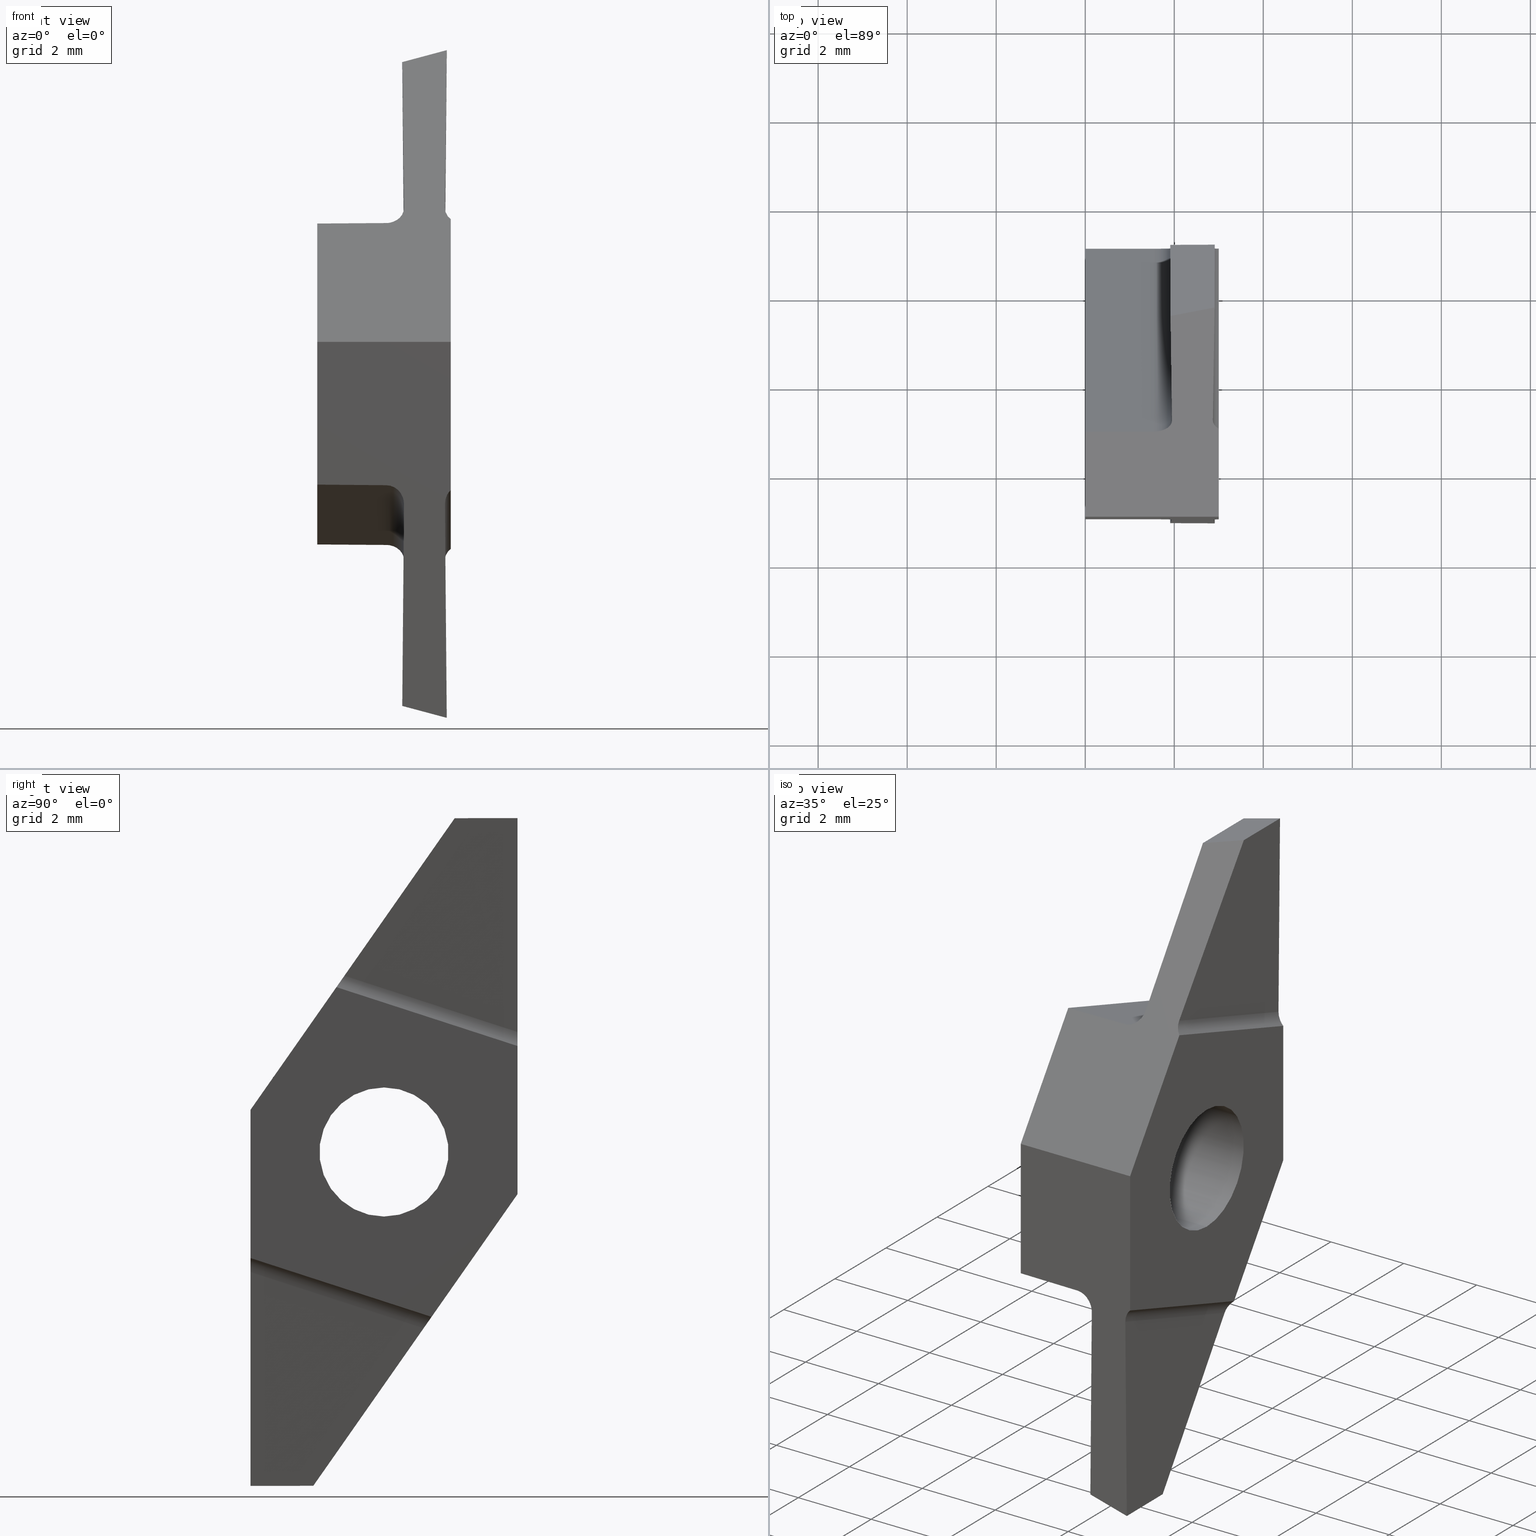
[diagram: canonical four-view strip — front | top / right | iso, engineering-drawing reading convention]
A machine part, canonical four-view strip (front | top / right | iso — engineering-drawing reading convention). The complete STEP part file that produces these views, byte-faithful:
ISO-10303-21;
HEADER;
FILE_DESCRIPTION (( 'STEP AP214' ),
    '1' );
FILE_NAME ('CUT-1602-01-CUT-1602-CUT-1602-01-93 stp.step',
    '2023-05-16T09:29:34',
    ( '' ),
    ( '' ),
    'SwSTEP 2.0',
    'SolidWorks 2022',
    '' );
FILE_SCHEMA (( 'AUTOMOTIVE_DESIGN' ));
ENDSEC;

DATA;
#1 = LINE ( 'NONE', #205, #401 ) ;
#2 = VERTEX_POINT ( 'NONE', #20 ) ;
#3 = DIRECTION ( 'NONE',  ( 0.000000000000000000, 0.5735764363510446051, 0.8191520442889929088 ) ) ;
#4 = ORIENTED_EDGE ( 'NONE', *, *, #560, .F. ) ;
#5 = VECTOR ( 'NONE', #468, 1000.000000000000114 ) ;
#6 = FACE_OUTER_BOUND ( 'NONE', #491, .T. ) ;
#7 = CARTESIAN_POINT ( 'NONE',  ( 3.268072926187949534, -2.335655814082118642, 4.427363277385077289 ) ) ;
#8 = PRODUCT_CONTEXT ( 'NONE', #183, 'mechanical' ) ;
#9 = DIRECTION ( 'NONE',  ( -0.008726535498373801103, 0.000000000000000000, 0.9999619230641713097 ) ) ;
#10 = DIRECTION ( 'NONE',  ( 0.000000000000000000, -0.3090169943749408454, -0.9510565162951556406 ) ) ;
#11 = CARTESIAN_POINT ( 'NONE',  ( 2.971793399215882037, 2.999999999999831246, 2.286259941952640595 ) ) ;
#12 = ORIENTED_EDGE ( 'NONE', *, *, #109, .T. ) ;
#13 = VECTOR ( 'NONE', #426, 999.9999999999998863 ) ;
#14 = ADVANCED_FACE ( 'NONE', ( #117 ), #608, .F. ) ;
#15 =( GEOMETRIC_REPRESENTATION_CONTEXT ( 3 ) GLOBAL_UNCERTAINTY_ASSIGNED_CONTEXT ( ( #322 ) ) GLOBAL_UNIT_ASSIGNED_CONTEXT ( ( #587, #389, #639 ) ) REPRESENTATION_CONTEXT ( 'NONE', 'WORKASPACE' ) );
#16 = LINE ( 'NONE', #465, #82 ) ;
#17 = ORIENTED_EDGE ( 'NONE', *, *, #351, .F. ) ;
#18 = CARTESIAN_POINT ( 'NONE',  ( 3.000000000000000444, 2.999999999999831690, 2.381546972483334024 ) ) ;
#19 = ADVANCED_FACE ( 'NONE', ( #568 ), #305, .F. ) ;
#20 = CARTESIAN_POINT ( 'NONE',  ( 1.949565382969295380, 0.8883138479216154959, -3.961696735592872720 ) ) ;
#21 = CARTESIAN_POINT ( 'NONE',  ( 2.867023292970518167, 2.999999999999831246, 2.575357154484895439 ) ) ;
#22 = CARTESIAN_POINT ( 'NONE',  ( 3.000000000000000000, -2.999999999999831246, 0.9458963666369498702 ) ) ;
#23 = EDGE_CURVE ( 'NONE', #521, #2, #174, .T. ) ;
#24 = UNCERTAINTY_MEASURE_WITH_UNIT (LENGTH_MEASURE( 1.000000000000000082E-05 ), #48, 'distance_accuracy_value', 'NONE');
#25 = ORIENTED_EDGE ( 'NONE', *, *, #395, .T. ) ;
#26 = LINE ( 'NONE', #529, #41 ) ;
#27 = VECTOR ( 'NONE', #264, 1000.000000000000114 ) ;
#28 = PRODUCT_DEFINITION_FORMATION_WITH_SPECIFIED_SOURCE ( 'ANY', '', #535, .NOT_KNOWN. ) ;
#29 = DIRECTION ( 'NONE',  ( -0.9504440842960546476, -0.1783223612929410173, -0.2546707248380619681 ) ) ;
#30 = VERTEX_POINT ( 'NONE', #159 ) ;
#31 = CARTESIAN_POINT ( 'NONE',  ( 2.868089764816377674, 2.999999999999831246, 2.697562723702898957 ) ) ;
#32 = LINE ( 'NONE', #534, #63 ) ;
#33 = ORIENTED_EDGE ( 'NONE', *, *, #628, .F. ) ;
#34 = LINE ( 'NONE', #328, #436 ) ;
#35 = EDGE_CURVE ( 'NONE', #235, #544, #262, .T. ) ;
#36 = LINE ( 'NONE', #438, #13 ) ;
#37 = ORIENTED_EDGE ( 'NONE', *, *, #247, .T. ) ;
#38 = SURFACE_SIDE_STYLE ('',( #149 ) ) ;
#39 = VECTOR ( 'NONE', #192, 1000.000000000000114 ) ;
#40 = DIRECTION ( 'NONE',  ( -1.000000000000000000, 0.000000000000000000, 0.000000000000000000 ) ) ;
#41 = VECTOR ( 'NONE', #230, 1000.000000000000227 ) ;
#42 = ORIENTED_EDGE ( 'NONE', *, *, #552, .T. ) ;
#43 = PRODUCT_DEFINITION ( 'UNKNOWN', '', #28, #559 ) ;
#44 = DIRECTION ( 'NONE',  ( -1.000000000000000000, 0.000000000000000000, 0.000000000000000000 ) ) ;
#45 = CARTESIAN_POINT ( 'NONE',  ( 1.552902005048489853, -1.130420593828511899, 3.615932469007118399 ) ) ;
#46 = ORIENTED_EDGE ( 'NONE', *, *, #413, .F. ) ;
#47 = PLANE ( 'NONE',  #317 ) ;
#48 =( LENGTH_UNIT ( ) NAMED_UNIT ( * ) SI_UNIT ( .MILLI., .METRE. ) );
#49 = ORIENTED_EDGE ( 'NONE', *, *, #501, .T. ) ;
#50 = CARTESIAN_POINT ( 'NONE',  ( 1.834532862608347692, 29.67704931971491433, 7.211829449049698582 ) ) ;
#51 = VERTEX_POINT ( 'NONE', #466 ) ;
#52 = AXIS2_PLACEMENT_3D ( 'NONE', #616, #357, #605 ) ;
#53 = MECHANICAL_DESIGN_GEOMETRIC_PRESENTATION_REPRESENTATION (  '', ( #145 ), #15 ) ;
#54 = ADVANCED_FACE ( 'NONE', ( #124 ), #62, .F. ) ;
#55 = DIRECTION ( 'NONE',  ( -0.9659258262890693114, -0.000000000000000000, 0.2588190451025171868 ) ) ;
#56 = CARTESIAN_POINT ( 'NONE',  ( 1.787371315628932145, -1.129253392658269073, 3.617599405031864723 ) ) ;
#57 = ORIENTED_EDGE ( 'NONE', *, *, #214, .F. ) ;
#58 = EDGE_CURVE ( 'NONE', #415, #168, #121, .T. ) ;
#59 = CARTESIAN_POINT ( 'NONE',  ( 3.000000000000000000, 3.000000000000168754, -0.9458963666369464285 ) ) ;
#60 = ORIENTED_EDGE ( 'NONE', *, *, #243, .T. ) ;
#61 = CARTESIAN_POINT ( 'NONE',  ( -1.232658810657304681E-17, -3.961943090966158820, 4.522397928163644387 ) ) ;
#62 = CYLINDRICAL_SURFACE ( 'NONE', #96, 0.4000000000000001332 ) ;
#63 = VECTOR ( 'NONE', #228, 1000.000000000000227 ) ;
#64 = AXIS2_PLACEMENT_3D ( 'NONE', #81, #584, #127 ) ;
#65 = DIRECTION ( 'NONE',  ( 0.9999619230641713097, 0.000000000000000000, 0.008726535498370685540 ) ) ;
#66 = ORIENTED_EDGE ( 'NONE', *, *, #313, .T. ) ;
#67 = EDGE_CURVE ( 'NONE', #157, #406, #514, .T. ) ;
#68 = CARTESIAN_POINT ( 'NONE',  ( 3.000000000000000000, 1.823566348508409485, 7.834663032647361192 ) ) ;
#69 = CARTESIAN_POINT ( 'NONE',  ( 1.981445435093202478, -2.999999999999831246, 0.9547851576625652203 ) ) ;
#70 = DIRECTION ( 'NONE',  ( 0.000000000000000000, 0.9510565162951555296, -0.3090169943749411230 ) ) ;
#71 = LINE ( 'NONE', #483, #249 ) ;
#72 = VECTOR ( 'NONE', #78, 1000.000000000000227 ) ;
#73 = CARTESIAN_POINT ( 'NONE',  ( 1.552902005048489409, 2.999999999999831246, 2.273877464346301114 ) ) ;
#74 = ORIENTED_EDGE ( 'NONE', *, *, #281, .F. ) ;
#75 = CYLINDRICAL_SURFACE ( 'NONE', #358, 0.4000000000000002442 ) ;
#76 = CARTESIAN_POINT ( 'NONE',  ( 2.868089764816377674, 2.999999999999831246, 2.697562723702898957 ) ) ;
#77 = DIRECTION ( 'NONE',  ( 0.000000000000000000, 0.000000000000000000, -1.000000000000000000 ) ) ;
#78 = DIRECTION ( 'NONE',  ( 0.9659258262890692004, 0.000000000000000000, 0.2588190451025171868 ) ) ;
#79 =( BOUNDED_CURVE ( )  B_SPLINE_CURVE ( 3, ( #394, #387, #202, #499 ),
 .UNSPECIFIED., .F., .F. ) 
 B_SPLINE_CURVE_WITH_KNOTS ( ( 4, 4 ),
 ( 4.703213266088003053, 6.274885753270528888 ),
 .UNSPECIFIED. ) 
 CURVE ( )  GEOMETRIC_REPRESENTATION_ITEM ( )  RATIONAL_B_SPLINE_CURVE ( ( 1.000000000000000000, 0.8045312959125139329, 0.8045312959125139329, 1.000000000000000000 ) ) 
 REPRESENTATION_ITEM ( '' )  );
#80 = ORIENTED_EDGE ( 'NONE', *, *, #206, .F. ) ;
#81 = CARTESIAN_POINT ( 'NONE',  ( 0.000000000000000000, 0.000000000000000000, 0.000000000000000000 ) ) ;
#82 = VECTOR ( 'NONE', #613, 1000.000000000000227 ) ;
#83 = VECTOR ( 'NONE', #449, 1000.000000000000114 ) ;
#84 = SURFACE_STYLE_FILL_AREA ( #530 ) ;
#85 = VERTEX_POINT ( 'NONE', #517 ) ;
#86 = EDGE_CURVE ( 'NONE', #225, #420, #71, .T. ) ;
#87 = ADVANCED_FACE ( 'NONE', ( #378 ), #238, .F. ) ;
#88 = DIRECTION ( 'NONE',  ( 0.000000000000000000, 0.9510565162951555296, -0.3090169943749411785 ) ) ;
#89 = CARTESIAN_POINT ( 'NONE',  ( 3.044585391019133613, 1.122994911595623257, -3.626537442286718704 ) ) ;
#90 = VERTEX_POINT ( 'NONE', #370 ) ;
#91 = EDGE_CURVE ( 'NONE', #209, #186, #585, .T. ) ;
#92 = CARTESIAN_POINT ( 'NONE',  ( 1.552902005048489631, -2.998973231275686491, -2.274211081728251926 ) ) ;
#93 = CARTESIAN_POINT ( 'NONE',  ( 1.949565382969295158, -2.999999999999831246, -2.698306981268059790 ) ) ;
#94 = ORIENTED_EDGE ( 'NONE', *, *, #206, .T. ) ;
#95 = LINE ( 'NONE', #240, #237 ) ;
#96 = AXIS2_PLACEMENT_3D ( 'NONE', #7, #211, #10 ) ;
#97 = LINE ( 'NONE', #245, #366 ) ;
#98 = VECTOR ( 'NONE', #130, 1000.000000000000114 ) ;
#99 = ORIENTED_EDGE ( 'NONE', *, *, #407, .T. ) ;
#100 =( NAMED_UNIT ( * ) SI_UNIT ( $, .STERADIAN. ) SOLID_ANGLE_UNIT ( ) );
#101 = DIRECTION ( 'NONE',  ( 0.000000000000000000, 0.5735764363510444941, 0.8191520442889929088 ) ) ;
#102 = ORIENTED_EDGE ( 'NONE', *, *, #439, .F. ) ;
#103 = CARTESIAN_POINT ( 'NONE',  ( 2.867023292970519055, -0.9584479486038182117, 3.861534859498934935 ) ) ;
#104 = EDGE_LOOP ( 'NONE', ( #254 ) ) ;
#105 = EDGE_CURVE ( 'NONE', #51, #528, #382, .T. ) ;
#106 = DIRECTION ( 'NONE',  ( -0.008726535498366820576, -0.000000000000000000, 0.9999619230641713097 ) ) ;
#107 = ORIENTED_EDGE ( 'NONE', *, *, #105, .F. ) ;
#108 = COLOUR_RGB ( '',0.8000000000000000444, 0.8000000000000000444, 0.8000000000000000444 ) ;
#109 = EDGE_CURVE ( 'NONE', #371, #273, #487, .T. ) ;
#110 = EDGE_CURVE ( 'NONE', #273, #555, #32, .T. ) ;
#111 = DIRECTION ( 'NONE',  ( 0.000000000000000000, 0.000000000000000000, 1.000000000000000000 ) ) ;
#112 = PLANE ( 'NONE',  #637 ) ;
#113 = ORIENTED_EDGE ( 'NONE', *, *, #167, .T. ) ;
#114 = LINE ( 'NONE', #300, #306 ) ;
#115 = DIRECTION ( 'NONE',  ( 2.704990084214964151E-20, -0.9510565162951556406, 0.3090169943749411785 ) ) ;
#116 = PLANE ( 'NONE',  #553 ) ;
#117 = FACE_OUTER_BOUND ( 'NONE', #276, .T. ) ;
#118 =( GEOMETRIC_REPRESENTATION_CONTEXT ( 3 ) GLOBAL_UNCERTAINTY_ASSIGNED_CONTEXT ( ( #24 ) ) GLOBAL_UNIT_ASSIGNED_CONTEXT ( ( #48, #293, #241 ) ) REPRESENTATION_CONTEXT ( 'NONE', 'WORKASPACE' ) );
#119 = DIRECTION ( 'NONE',  ( 0.9999579034289297619, -0.002835411865495959111, -0.008726500419548482643 ) ) ;
#120 = EDGE_CURVE ( 'NONE', #267, #521, #618, .T. ) ;
#121 = LINE ( 'NONE', #566, #27 ) ;
#122 = ADVANCED_FACE ( 'NONE', ( #576 ), #185, .F. ) ;
#123 = DIRECTION ( 'NONE',  ( 0.000000000000000000, 0.5735764363510444941, 0.8191520442889929088 ) ) ;
#124 = FACE_OUTER_BOUND ( 'NONE', #143, .T. ) ;
#125 = LINE ( 'NONE', #269, #5 ) ;
#126 = ORIENTED_EDGE ( 'NONE', *, *, #467, .F. ) ;
#127 = DIRECTION ( 'NONE',  ( 0.000000000000000000, 0.000000000000000000, 1.000000000000000000 ) ) ;
#128 = LINE ( 'NONE', #372, #543 ) ;
#129 = DIRECTION ( 'NONE',  ( 5.093655730767969543E-19, -0.9510565162951555296, 0.3090169943749411230 ) ) ;
#130 = DIRECTION ( 'NONE',  ( 5.093655730767969543E-19, 0.9510565162951555296, -0.3090169943749411230 ) ) ;
#131 = EDGE_CURVE ( 'NONE', #480, #555, #140, .T. ) ;
#132 = EDGE_CURVE ( 'NONE', #392, #267, #36, .T. ) ;
#133 = EDGE_LOOP ( 'NONE', ( #583, #270, #385, #229, #99, #189 ) ) ;
#134 = CARTESIAN_POINT ( 'NONE',  ( 0.000000000000000000, -2.999999999999831246, 0.9458963666369498702 ) ) ;
#135 = VECTOR ( 'NONE', #40, 1000.000000000000000 ) ;
#136 = LINE ( 'NONE', #89, #593 ) ;
#137 = EDGE_LOOP ( 'NONE', ( #42 ) ) ;
#138 = EDGE_CURVE ( 'NONE', #595, #148, #136, .T. ) ;
#139 = CARTESIAN_POINT ( 'NONE',  ( 1.914519305005153882, -1.402460638096504342, -7.233261751695358122 ) ) ;
#140 = LINE ( 'NONE', #275, #423 ) ;
#141 = ORIENTED_EDGE ( 'NONE', *, *, #439, .T. ) ;
#142 = EDGE_CURVE ( 'NONE', #85, #251, #172, .T. ) ;
#143 = EDGE_LOOP ( 'NONE', ( #633, #60, #603, #360 ) ) ;
#144 = FACE_OUTER_BOUND ( 'NONE', #163, .T. ) ;
#145 = STYLED_ITEM ( 'NONE', ( #343 ), #160 ) ;
#146 = EDGE_LOOP ( 'NONE', ( #376, #611, #170, #497 ) ) ;
#147 = CARTESIAN_POINT ( 'NONE',  ( 1.552902005048489409, -2.999999999999831246, -2.273877464346301114 ) ) ;
#148 = VERTEX_POINT ( 'NONE', #283 ) ;
#149 = SURFACE_STYLE_FILL_AREA ( #244 ) ;
#150 = CARTESIAN_POINT ( 'NONE',  ( 1.951716850284155313, -1.028943747718853663, 3.760856424509101181 ) ) ;
#151 = ORIENTED_EDGE ( 'NONE', *, *, #142, .T. ) ;
#152 = DIRECTION ( 'NONE',  ( 3.579961649120140715E-19, -0.9510565162951555296, 0.3090169943749411785 ) ) ;
#153 = ORIENTED_EDGE ( 'NONE', *, *, #131, .F. ) ;
#154 = EDGE_CURVE ( 'NONE', #30, #242, #579, .T. ) ;
#155 = CIRCLE ( 'NONE', #522, 1.449999999999999067 ) ;
#156 = CARTESIAN_POINT ( 'NONE',  ( 3.268072926187949534, 2.335655814082118642, -4.427363277385077289 ) ) ;
#157 = VERTEX_POINT ( 'NONE', #93 ) ;
#158 = DIRECTION ( 'NONE',  ( 0.000000000000000000, 0.000000000000000000, -1.000000000000000000 ) ) ;
#159 = CARTESIAN_POINT ( 'NONE',  ( 1.909999999999999698, 2.999999999999836131, 7.232050807568879414 ) ) ;
#160 = ADVANCED_BREP_SHAPE_REPRESENTATION ( 'CUT-1602-01-CUT-1602-CUT-1602-01-93 stp', ( #201, #259 ), #402 ) ;
#161 = EDGE_CURVE ( 'NONE', #521, #406, #630, .T. ) ;
#162 = FACE_OUTER_BOUND ( 'NONE', #586, .T. ) ;
#163 = EDGE_LOOP ( 'NONE', ( #625, #549, #25, #299, #431, #196, #400, #213, #427 ) ) ;
#164 = AXIS2_PLACEMENT_3D ( 'NONE', #68, #303, #3 ) ;
#165 = VECTOR ( 'NONE', #437, 1000.000000000000227 ) ;
#166 = PLANE ( 'NONE',  #164 ) ;
#167 = EDGE_CURVE ( 'NONE', #335, #335, #380, .T. ) ;
#168 = VERTEX_POINT ( 'NONE', #76 ) ;
#169 = FACE_OUTER_BOUND ( 'NONE', #232, .T. ) ;
#170 = ORIENTED_EDGE ( 'NONE', *, *, #515, .F. ) ;
#171 = EDGE_CURVE ( 'NONE', #225, #330, #525, .T. ) ;
#172 =( BOUNDED_CURVE ( )  B_SPLINE_CURVE ( 3, ( #538, #375, #478, #319 ),
 .UNSPECIFIED., .F., .F. ) 
 B_SPLINE_CURVE_WITH_KNOTS ( ( 4, 4 ),
 ( 1.561620612498217486, 2.407138250247120137 ),
 .UNSPECIFIED. ) 
 CURVE ( )  GEOMETRIC_REPRESENTATION_ITEM ( )  RATIONAL_B_SPLINE_CURVE ( ( 1.000000000000000000, 0.9413070198067640115, 0.9413070198067640115, 1.000000000000000000 ) ) 
 REPRESENTATION_ITEM ( '' )  );
#173 = DIRECTION ( 'NONE',  ( 0.000000000000000000, -0.8191520442889929088, 0.5735764363510444941 ) ) ;
#174 = LINE ( 'NONE', #558, #414 ) ;
#175 = VECTOR ( 'NONE', #260, 1000.000000000000000 ) ;
#176 = VECTOR ( 'NONE', #471, 1000.000000000000114 ) ;
#177 = CARTESIAN_POINT ( 'NONE',  ( 0.000000000000000000, 3.000000000000168310, 2.260325493856135015 ) ) ;
#178 = CARTESIAN_POINT ( 'NONE',  ( 3.112022366277341856, -1.627136215618504300, -7.554131729897035186 ) ) ;
#179 = ORIENTED_EDGE ( 'NONE', *, *, #214, .T. ) ;
#180 = PLANE ( 'NONE',  #199 ) ;
#181 = DIRECTION ( 'NONE',  ( -0.9999623398293699950, 0.004977867723315087915, 0.007109131866878383617 ) ) ;
#182 = ORIENTED_EDGE ( 'NONE', *, *, #501, .F. ) ;
#183 = APPLICATION_CONTEXT ( 'automotive_design' ) ;
#184 = CARTESIAN_POINT ( 'NONE',  ( 1.549582221597723297, 3.834357726173466485, -4.915065304970623217 ) ) ;
#185 = PLANE ( 'NONE',  #435 ) ;
#186 = VERTEX_POINT ( 'NONE', #433 ) ;
#187 = VECTOR ( 'NONE', #527, 1000.000000000000000 ) ;
#188 = CARTESIAN_POINT ( 'NONE',  ( 3.000000000000000444, -1.069002824306939825, 3.703646134127897671 ) ) ;
#189 = ORIENTED_EDGE ( 'NONE', *, *, #86, .T. ) ;
#190 =( BOUNDED_CURVE ( )  B_SPLINE_CURVE ( 3, ( #147, #545, #346, #250 ),
 .UNSPECIFIED., .F., .F. ) 
 B_SPLINE_CURVE_WITH_KNOTS ( ( 4, 4 ),
 ( 3.149892207498848684, 4.721564694681373631 ),
 .UNSPECIFIED. ) 
 CURVE ( )  GEOMETRIC_REPRESENTATION_ITEM ( )  RATIONAL_B_SPLINE_CURVE ( ( 1.000000000000000000, 0.8045312959125141550, 0.8045312959125141550, 1.000000000000000000 ) ) 
 REPRESENTATION_ITEM ( '' )  );
#191 = SURFACE_STYLE_USAGE ( .BOTH. , #38 ) ;
#192 = DIRECTION ( 'NONE',  ( -0.002828904082893561947, 0.9999957113577047085, -0.0007580025644764245034 ) ) ;
#193 = VERTEX_POINT ( 'NONE', #188 ) ;
#194 = CARTESIAN_POINT ( 'NONE',  ( 2.868089764816377674, -0.8887383937414377044, 3.961090421326522559 ) ) ;
#195 = DIRECTION ( 'NONE',  ( 0.008726535498366820576, 0.000000000000000000, -0.9999619230641713097 ) ) ;
#196 = ORIENTED_EDGE ( 'NONE', *, *, #628, .T. ) ;
#197 = VECTOR ( 'NONE', #411, 999.9999999999998863 ) ;
#198 = CARTESIAN_POINT ( 'NONE',  ( 1.914519305005153882, 1.402460638096504342, 7.233261751695358122 ) ) ;
#199 = AXIS2_PLACEMENT_3D ( 'NONE', #482, #432, #323 ) ;
#200 = ORIENTED_EDGE ( 'NONE', *, *, #161, .T. ) ;
#201 = MANIFOLD_SOLID_BREP ( 'Kombinieren1', #327 ) ;
#202 = CARTESIAN_POINT ( 'NONE',  ( 1.787371315628932145, 1.129253392658269073, -3.617599405031864723 ) ) ;
#203 = EDGE_LOOP ( 'NONE', ( #484, #297, #500, #476 ) ) ;
#204 = LINE ( 'NONE', #503, #493 ) ;
#205 = CARTESIAN_POINT ( 'NONE',  ( 0.000000000000000000, -1.823566348508071755, -7.834663032647361192 ) ) ;
#206 = EDGE_CURVE ( 'NONE', #2, #595, #79, .T. ) ;
#207 = EDGE_LOOP ( 'NONE', ( #622, #153, #246, #182 ) ) ;
#208 = LINE ( 'NONE', #359, #175 ) ;
#209 = VERTEX_POINT ( 'NONE', #496 ) ;
#210 = CARTESIAN_POINT ( 'NONE',  ( 1.949565382969295158, 2.999999999999831246, 2.698306981268059790 ) ) ;
#211 = DIRECTION ( 'NONE',  ( 0.000000000000000000, -0.9510565162951557516, 0.3090169943749411230 ) ) ;
#212 = CARTESIAN_POINT ( 'NONE',  ( 3.000000000000000000, 1.823566348508409485, 7.834663032647361192 ) ) ;
#213 = ORIENTED_EDGE ( 'NONE', *, *, #86, .F. ) ;
#214 = EDGE_CURVE ( 'NONE', #506, #418, #97, .T. ) ;
#215 = CARTESIAN_POINT ( 'NONE',  ( 1.787371315628931479, 2.999999999999831246, 2.275923647020726470 ) ) ;
#216 = ORIENTED_EDGE ( 'NONE', *, *, #131, .T. ) ;
#217 = VECTOR ( 'NONE', #582, 1000.000000000000114 ) ;
#218 = COLOUR_RGB ( '',0.8000000000000000444, 0.8000000000000000444, 0.8000000000000000444 ) ;
#219 = CARTESIAN_POINT ( 'NONE',  ( 1.951292837038947736, -29.66724040110625893, 6.164351299230993675 ) ) ;
#220 = ORIENTED_EDGE ( 'NONE', *, *, #454, .F. ) ;
#221 = LINE ( 'NONE', #134, #347 ) ;
#222 = DIRECTION ( 'NONE',  ( 0.000000000000000000, -0.3090169943749418446, -0.9510565162951553075 ) ) ;
#223 = CARTESIAN_POINT ( 'NONE',  ( 1.909999999999999698, 31.03959590644371858, 7.232050807568879414 ) ) ;
#224 = DIRECTION ( 'NONE',  ( 0.000000000000000000, 0.000000000000000000, -1.000000000000000000 ) ) ;
#225 = VERTEX_POINT ( 'NONE', #59 ) ;
#226 = AXIS2_PLACEMENT_3D ( 'NONE', #621, #422, #285 ) ;
#227 = CARTESIAN_POINT ( 'NONE',  ( 2.868089764816377674, 0.8887383937414377044, -3.961090421326522559 ) ) ;
#228 = DIRECTION ( 'NONE',  ( 0.008774687666367861696, -0.5735543546259365133, -0.8191205083172946599 ) ) ;
#229 = ORIENTED_EDGE ( 'NONE', *, *, #373, .F. ) ;
#230 = DIRECTION ( 'NONE',  ( 0.9659258262890692004, 0.000000000000000000, -0.2588190451025171868 ) ) ;
#231 = DIRECTION ( 'NONE',  ( 0.000000000000000000, 0.000000000000000000, 1.000000000000000000 ) ) ;
#232 = EDGE_LOOP ( 'NONE', ( #46, #216, #531, #580 ) ) ;
#233 = LINE ( 'NONE', #421, #450 ) ;
#234 = CARTESIAN_POINT ( 'NONE',  ( -1.224646799147353885E-17, 0.000000000000000000, 0.000000000000000000 ) ) ;
#235 = VERTEX_POINT ( 'NONE', #505 ) ;
#236 = AXIS2_PLACEMENT_3D ( 'NONE', #363, #115, #222 ) ;
#237 = VECTOR ( 'NONE', #152, 1000.000000000000114 ) ;
#238 = PLANE ( 'NONE',  #226 ) ;
#239 = ORIENTED_EDGE ( 'NONE', *, *, #612, .F. ) ;
#240 = CARTESIAN_POINT ( 'NONE',  ( 2.868089764816377674, -28.25583949807275275, 5.508556974117809091 ) ) ;
#241 =( NAMED_UNIT ( * ) SI_UNIT ( $, .STERADIAN. ) SOLID_ANGLE_UNIT ( ) );
#242 = VERTEX_POINT ( 'NONE', #597 ) ;
#243 = EDGE_CURVE ( 'NONE', #193, #420, #554, .T. ) ;
#244 = FILL_AREA_STYLE ('',( #489 ) ) ;
#245 = CARTESIAN_POINT ( 'NONE',  ( 2.971793399215882037, -2.999999999999831246, -2.286259941952640595 ) ) ;
#246 = ORIENTED_EDGE ( 'NONE', *, *, #395, .F. ) ;
#247 = EDGE_CURVE ( 'NONE', #392, #85, #507, .T. ) ;
#248 = DIRECTION ( 'NONE',  ( 0.008774687666360843005, 0.5735543546259365133, 0.8191205083172946599 ) ) ;
#249 = VECTOR ( 'NONE', #231, 1000.000000000000000 ) ;
#250 = CARTESIAN_POINT ( 'NONE',  ( 1.949565382969295158, -2.999999999999831246, -2.698306981268059790 ) ) ;
#251 = VERTEX_POINT ( 'NONE', #445 ) ;
#252 = CARTESIAN_POINT ( 'NONE',  ( 2.836306245659160563, 2.999999999999831246, -0.9444678328846455306 ) ) ;
#253 = DIRECTION ( 'NONE',  ( 0.000000000000000000, 0.000000000000000000, 1.000000000000000000 ) ) ;
#254 = ORIENTED_EDGE ( 'NONE', *, *, #167, .F. ) ;
#255 = CARTESIAN_POINT ( 'NONE',  ( 2.836306245659160563, -2.999999999999831246, 0.9444678328846455306 ) ) ;
#256 = EDGE_LOOP ( 'NONE', ( #546, #640, #508, #316 ) ) ;
#257 = DIRECTION ( 'NONE',  ( 0.008299458626916070281, -0.3090063514897842256, -0.9510237608627200023 ) ) ;
#258 = ORIENTED_EDGE ( 'NONE', *, *, #67, .T. ) ;
#259 = AXIS2_PLACEMENT_3D ( 'NONE', #302, #111, #463 ) ;
#260 = DIRECTION ( 'NONE',  ( 0.008774687666360843005, -0.5735543546259365133, -0.8191205083172946599 ) ) ;
#261 = CARTESIAN_POINT ( 'NONE',  ( 2.867023292970519055, 0.9584479486038182117, -3.861534859498934935 ) ) ;
#262 =( BOUNDED_CURVE ( )  B_SPLINE_CURVE ( 3, ( #562, #301, #261, #409 ),
 .UNSPECIFIED., .F., .F. ) 
 B_SPLINE_CURVE_WITH_KNOTS ( ( 4, 4 ),
 ( 0.7344544033426735341, 1.579972041091575186 ),
 .UNSPECIFIED. ) 
 CURVE ( )  GEOMETRIC_REPRESENTATION_ITEM ( )  RATIONAL_B_SPLINE_CURVE ( ( 1.000000000000000000, 0.9413070198067641225, 0.9413070198067641225, 1.000000000000000000 ) ) 
 REPRESENTATION_ITEM ( '' )  );
#263 = DIRECTION ( 'NONE',  ( 0.000000000000000000, 0.3090169943749408454, 0.9510565162951556406 ) ) ;
#264 = DIRECTION ( 'NONE',  ( 3.579961649120140715E-19, 0.9510565162951555296, -0.3090169943749411785 ) ) ;
#265 = EDGE_CURVE ( 'NONE', #555, #90, #341, .T. ) ;
#266 = FACE_OUTER_BOUND ( 'NONE', #461, .T. ) ;
#267 = VERTEX_POINT ( 'NONE', #344 ) ;
#268 = STYLED_ITEM ( 'NONE', ( #442 ), #201 ) ;
#269 = CARTESIAN_POINT ( 'NONE',  ( -1.232658810657304681E-17, 3.961943090966158820, -4.522397928163644387 ) ) ;
#270 = ORIENTED_EDGE ( 'NONE', *, *, #352, .T. ) ;
#271 = FACE_OUTER_BOUND ( 'NONE', #619, .T. ) ;
#272 = CARTESIAN_POINT ( 'NONE',  ( 1.834532862608347692, -29.67704931971491433, -7.211829449049698582 ) ) ;
#273 = VERTEX_POINT ( 'NONE', #198 ) ;
#274 = CARTESIAN_POINT ( 'NONE',  ( 1.949565382969295158, 2.999999999999831246, 2.698306981268059790 ) ) ;
#275 = CARTESIAN_POINT ( 'NONE',  ( 1.949565382969295380, -1.004717758376801884, 3.999518658818292938 ) ) ;
#276 = EDGE_LOOP ( 'NONE', ( #286, #292, #57, #17 ) ) ;
#277 = AXIS2_PLACEMENT_3D ( 'NONE', #464, #604, #158 ) ;
#278 = LINE ( 'NONE', #537, #98 ) ;
#279 = SURFACE_SIDE_STYLE ('',( #84 ) ) ;
#280 = ORIENTED_EDGE ( 'NONE', *, *, #138, .T. ) ;
#281 = EDGE_CURVE ( 'NONE', #330, #528, #548, .T. ) ;
#282 = CARTESIAN_POINT ( 'NONE',  ( -6.163294053286523407E-18, -2.999999999999831690, -2.260325493856243817 ) ) ;
#283 = CARTESIAN_POINT ( 'NONE',  ( 2.106771404438143542E-16, 1.138151025726298116, -3.604892268101038688 ) ) ;
#284 = ADVANCED_FACE ( 'NONE', ( #632 ), #112, .F. ) ;
#285 = DIRECTION ( 'NONE',  ( 0.000000000000000000, 0.000000000000000000, 1.000000000000000000 ) ) ;
#286 = ORIENTED_EDGE ( 'NONE', *, *, #138, .F. ) ;
#287 = VERTEX_POINT ( 'NONE', #547 ) ;
#288 = CARTESIAN_POINT ( 'NONE',  ( 0.000000000000000000, 3.000000000000168754, -0.9458963666369464285 ) ) ;
#289 = ORIENTED_EDGE ( 'NONE', *, *, #91, .F. ) ;
#290 = PRODUCT_RELATED_PRODUCT_CATEGORY ( 'part', '', ( #535 ) ) ;
#291 = SURFACE_STYLE_USAGE ( .BOTH. , #279 ) ;
#292 = ORIENTED_EDGE ( 'NONE', *, *, #524, .T. ) ;
#293 =( NAMED_UNIT ( * ) PLANE_ANGLE_UNIT ( ) SI_UNIT ( $, .RADIAN. ) );
#294 = ORIENTED_EDGE ( 'NONE', *, *, #35, .F. ) ;
#295 = CARTESIAN_POINT ( 'NONE',  ( 1.949565382969295380, -0.8883138479216154959, 3.961696735592872720 ) ) ;
#296 = VECTOR ( 'NONE', #29, 1000.000000000000227 ) ;
#297 = ORIENTED_EDGE ( 'NONE', *, *, #472, .F. ) ;
#298 = DIRECTION ( 'NONE',  ( -0.000000000000000000, 0.9510565162951556406, -0.3090169943749410675 ) ) ;
#299 = ORIENTED_EDGE ( 'NONE', *, *, #413, .T. ) ;
#300 = CARTESIAN_POINT ( 'NONE',  ( 3.000000000000000000, -1.823566348508071755, -7.834663032647361192 ) ) ;
#301 = CARTESIAN_POINT ( 'NONE',  ( 2.913735021948772097, 1.022282746663827568, -3.770369319888747572 ) ) ;
#302 = CARTESIAN_POINT ( 'NONE',  ( 0.000000000000000000, 0.000000000000000000, 0.000000000000000000 ) ) ;
#303 = DIRECTION ( 'NONE',  ( 0.000000000000000000, 0.8191520442889929088, -0.5735764363510446051 ) ) ;
#304 = AXIS2_PLACEMENT_3D ( 'NONE', #234, #574, #224 ) ;
#305 = CYLINDRICAL_SURFACE ( 'NONE', #236, 0.4000000000000002442 ) ;
#306 = VECTOR ( 'NONE', #123, 1000.000000000000114 ) ;
#307 = PLANE ( 'NONE',  #447 ) ;
#308 = DIRECTION ( 'NONE',  ( 0.008774687666367861696, 0.5735543546259365133, 0.8191205083172946599 ) ) ;
#309 = EDGE_CURVE ( 'NONE', #273, #30, #591, .T. ) ;
#310 = SHAPE_DEFINITION_REPRESENTATION ( #336, #160 ) ;
#311 = FACE_OUTER_BOUND ( 'NONE', #458, .T. ) ;
#312 = DIRECTION ( 'NONE',  ( -0.008726535498373801103, 0.000000000000000000, -0.9999619230641713097 ) ) ;
#313 = EDGE_CURVE ( 'NONE', #148, #330, #1, .T. ) ;
#314 = ADVANCED_FACE ( 'NONE', ( #144 ), #599, .F. ) ;
#315 = DIRECTION ( 'NONE',  ( 0.008726535498373802838, 0.000000000000000000, 0.9999619230641713097 ) ) ;
#316 = ORIENTED_EDGE ( 'NONE', *, *, #132, .T. ) ;
#317 = AXIS2_PLACEMENT_3D ( 'NONE', #498, #441, #55 ) ;
#318 = CARTESIAN_POINT ( 'NONE',  ( 3.000000000000000000, -1.823566348508071755, -7.834663032647361192 ) ) ;
#319 = CARTESIAN_POINT ( 'NONE',  ( 3.000000000000000444, -2.999999999999831690, -2.381546972483334024 ) ) ;
#320 = CARTESIAN_POINT ( 'NONE',  ( 3.000000000000000000, 0.000000000000000000, 0.000000000000000000 ) ) ;
#321 = CARTESIAN_POINT ( 'NONE',  ( 0.8824970515110891478, 2.999999999999831246, 6.956732222300685109 ) ) ;
#322 = UNCERTAINTY_MEASURE_WITH_UNIT (LENGTH_MEASURE( 1.000000000000000082E-05 ), #587, 'distance_accuracy_value', 'NONE');
#323 = DIRECTION ( 'NONE',  ( 0.000000000000000000, 0.000000000000000000, 1.000000000000000000 ) ) ;
#324 = FILL_AREA_STYLE_COLOUR ( '', #108 ) ;
#325 = EDGE_CURVE ( 'NONE', #418, #157, #190, .T. ) ;
#326 = ORIENTED_EDGE ( 'NONE', *, *, #351, .T. ) ;
#327 = CLOSED_SHELL ( 'NONE', ( #481, #417, #314, #399, #448, #87, #412, #374, #284, #606, #14, #462, #331, #390, #122, #456, #410, #19, #54 ) ) ;
#328 = CARTESIAN_POINT ( 'NONE',  ( 3.000000000000000000, -2.999999999999831246, 0.9458963666369498702 ) ) ;
#329 = CARTESIAN_POINT ( 'NONE',  ( -1.232658810657304681E-17, -3.961943090966158820, 4.522397928163644387 ) ) ;
#330 = VERTEX_POINT ( 'NONE', #384 ) ;
#331 = ADVANCED_FACE ( 'NONE', ( #266 ), #511, .F. ) ;
#332 = CARTESIAN_POINT ( 'NONE',  ( 1.552902005048489409, -2.999999999999831246, -2.273877464346301114 ) ) ;
#333 = CARTESIAN_POINT ( 'NONE',  ( 2.909999999999999698, 29.66724040110625893, -1.164711650497194828 ) ) ;
#334 = ORIENTED_EDGE ( 'NONE', *, *, #265, .T. ) ;
#335 = VERTEX_POINT ( 'NONE', #590 ) ;
#336 = PRODUCT_DEFINITION_SHAPE ( 'NONE', 'NONE',  #43 ) ;
#337 = ORIENTED_EDGE ( 'NONE', *, *, #110, .T. ) ;
#338 = DIRECTION ( 'NONE',  ( 0.000000000000000000, -1.000000000000000000, 0.000000000000000000 ) ) ;
#339 = ORIENTED_EDGE ( 'NONE', *, *, #313, .F. ) ;
#340 = DIRECTION ( 'NONE',  ( 0.000000000000000000, 0.000000000000000000, -1.000000000000000000 ) ) ;
#341 =( BOUNDED_CURVE ( )  B_SPLINE_CURVE ( 3, ( #635, #150, #56, #45 ),
 .UNSPECIFIED., .F., .F. ) 
 B_SPLINE_CURVE_WITH_KNOTS ( ( 4, 4 ),
 ( 4.703213266088003053, 6.274885753270528888 ),
 .UNSPECIFIED. ) 
 CURVE ( )  GEOMETRIC_REPRESENTATION_ITEM ( )  RATIONAL_B_SPLINE_CURVE ( ( 1.000000000000000000, 0.8045312959125139329, 0.8045312959125139329, 1.000000000000000000 ) ) 
 REPRESENTATION_ITEM ( '' )  );
#342 = ORIENTED_EDGE ( 'NONE', *, *, #23, .T. ) ;
#343 = PRESENTATION_STYLE_ASSIGNMENT (( #191 ) ) ;
#344 = CARTESIAN_POINT ( 'NONE',  ( 2.905988210179870190, -1.588480078104101523, -7.498925044157489950 ) ) ;
#345 = EDGE_LOOP ( 'NONE', ( #334, #388, #141, #289, #509, #589, #350, #12, #337 ) ) ;
#346 = CARTESIAN_POINT ( 'NONE',  ( 1.951716850284154869, -2.999999999999831246, -2.451773245860907391 ) ) ;
#347 = VECTOR ( 'NONE', #77, 1000.000000000000000 ) ;
#348 = ORIENTED_EDGE ( 'NONE', *, *, #23, .F. ) ;
#349 = PLANE ( 'NONE',  #542 ) ;
#350 = ORIENTED_EDGE ( 'NONE', *, *, #556, .T. ) ;
#351 = EDGE_CURVE ( 'NONE', #148, #506, #125, .T. ) ;
#352 = EDGE_CURVE ( 'NONE', #193, #209, #516, .T. ) ;
#353 = CARTESIAN_POINT ( 'NONE',  ( 1.981445435093202478, 2.999999999999831246, -0.9547851576625652203 ) ) ;
#354 = EDGE_LOOP ( 'NONE', ( #473, #470, #33, #452 ) ) ;
#355 = PLANE ( 'NONE',  #64 ) ;
#356 = VECTOR ( 'NONE', #65, 1000.000000000000000 ) ;
#357 = DIRECTION ( 'NONE',  ( 0.008299458626916070281, 0.3090063514897842256, 0.9510237608627200023 ) ) ;
#358 = AXIS2_PLACEMENT_3D ( 'NONE', #184, #575, #474 ) ;
#359 = CARTESIAN_POINT ( 'NONE',  ( 2.909591707215107181, -1.824021386812475720, -7.835312894694787644 ) ) ;
#360 = ORIENTED_EDGE ( 'NONE', *, *, #58, .F. ) ;
#361 = EDGE_CURVE ( 'NONE', #544, #267, #208, .T. ) ;
#362 = LINE ( 'NONE', #11, #356 ) ;
#363 = CARTESIAN_POINT ( 'NONE',  ( 1.549582221597723297, -3.834357726173466485, 4.915065304970623217 ) ) ;
#364 = DIRECTION ( 'NONE',  ( -0.002842164953597773117, -0.9999956710561971329, -0.0007615558040725512942 ) ) ;
#365 = DIRECTION ( 'NONE',  ( -0.002828904082893561947, -0.9999957113577047085, 0.0007580025644764245034 ) ) ;
#366 = VECTOR ( 'NONE', #391, 1000.000000000000000 ) ;
#367 = AXIS2_PLACEMENT_3D ( 'NONE', #318, #173, #578 ) ;
#368 = EDGE_CURVE ( 'NONE', #528, #614, #362, .T. ) ;
#369 = DIRECTION ( 'NONE',  ( 0.2588190451025171868, 0.000000000000000000, -0.9659258262890693114 ) ) ;
#370 = CARTESIAN_POINT ( 'NONE',  ( 1.552902005048489853, -1.130420593828511899, 3.615932469007118399 ) ) ;
#371 = VERTEX_POINT ( 'NONE', #416 ) ;
#372 = CARTESIAN_POINT ( 'NONE',  ( 1.552902005048489631, 2.998973231275686491, 2.274211081728251926 ) ) ;
#373 = EDGE_CURVE ( 'NONE', #235, #251, #16, .T. ) ;
#374 = ADVANCED_FACE ( 'NONE', ( #518 ), #349, .F. ) ;
#375 = CARTESIAN_POINT ( 'NONE',  ( 2.867023292970518167, -2.999999999999831246, -2.575357154484895439 ) ) ;
#376 = ORIENTED_EDGE ( 'NONE', *, *, #120, .F. ) ;
#377 = CARTESIAN_POINT ( 'NONE',  ( 0.000000000000000000, 1.823566348508409485, 7.834663032647361192 ) ) ;
#378 = FACE_OUTER_BOUND ( 'NONE', #446, .T. ) ;
#379 = ORIENTED_EDGE ( 'NONE', *, *, #325, .F. ) ;
#380 = CIRCLE ( 'NONE', #304, 1.449999999999999512 ) ;
#381 = DIRECTION ( 'NONE',  ( 0.000000000000000000, -0.5735764363510446051, -0.8191520442889929088 ) ) ;
#382 = LINE ( 'NONE', #329, #217 ) ;
#383 = ORIENTED_EDGE ( 'NONE', *, *, #515, .T. ) ;
#384 = CARTESIAN_POINT ( 'NONE',  ( 0.000000000000000000, 3.000000000000168754, -0.9458963666369464285 ) ) ;
#385 = ORIENTED_EDGE ( 'NONE', *, *, #485, .T. ) ;
#386 = CARTESIAN_POINT ( 'NONE',  ( 1.552902005048489853, 1.130420593828511899, -3.615932469007118399 ) ) ;
#387 = CARTESIAN_POINT ( 'NONE',  ( 1.951716850284155313, 1.028943747718853663, -3.760856424509101181 ) ) ;
#388 = ORIENTED_EDGE ( 'NONE', *, *, #612, .T. ) ;
#389 =( NAMED_UNIT ( * ) PLANE_ANGLE_UNIT ( ) SI_UNIT ( $, .RADIAN. ) );
#390 = ADVANCED_FACE ( 'NONE', ( #169 ), #307, .F. ) ;
#391 = DIRECTION ( 'NONE',  ( 0.9999619230641713097, 0.000000000000000000, -0.008726535498370685540 ) ) ;
#392 = VERTEX_POINT ( 'NONE', #567 ) ;
#393 = FACE_OUTER_BOUND ( 'NONE', #146, .T. ) ;
#394 = CARTESIAN_POINT ( 'NONE',  ( 1.949565382969295380, 0.8883138479216154959, -3.961696735592872720 ) ) ;
#395 = EDGE_CURVE ( 'NONE', #614, #480, #510, .T. ) ;
#396 = ORIENTED_EDGE ( 'NONE', *, *, #454, .T. ) ;
#397 = LINE ( 'NONE', #252, #83 ) ;
#398 = CARTESIAN_POINT ( 'NONE',  ( 3.000000000000000444, -2.427050983125035977, 4.144902729360722127 ) ) ;
#399 = ADVANCED_FACE ( 'NONE', ( #569 ), #166, .F. ) ;
#400 = ORIENTED_EDGE ( 'NONE', *, *, #428, .T. ) ;
#401 = VECTOR ( 'NONE', #101, 1000.000000000000114 ) ;
#402 =( GEOMETRIC_REPRESENTATION_CONTEXT ( 3 ) GLOBAL_UNCERTAINTY_ASSIGNED_CONTEXT ( ( #424 ) ) GLOBAL_UNIT_ASSIGNED_CONTEXT ( ( #453, #540, #100 ) ) REPRESENTATION_CONTEXT ( 'NONE', 'WORKASPACE' ) );
#403 = CARTESIAN_POINT ( 'NONE',  ( 1.909999999999999698, -2.999999999999836131, -7.232050807568879414 ) ) ;
#404 = ORIENTED_EDGE ( 'NONE', *, *, #485, .F. ) ;
#405 = CYLINDRICAL_SURFACE ( 'NONE', #277, 1.449999999999999289 ) ;
#406 = VERTEX_POINT ( 'NONE', #403 ) ;
#407 = EDGE_CURVE ( 'NONE', #235, #225, #114, .T. ) ;
#408 = FACE_BOUND ( 'NONE', #104, .T. ) ;
#409 = CARTESIAN_POINT ( 'NONE',  ( 2.868089764816377674, 0.8887383937414377044, -3.961090421326522559 ) ) ;
#410 = ADVANCED_FACE ( 'NONE', ( #311 ), #116, .F. ) ;
#411 = DIRECTION ( 'NONE',  ( 0.000000000000000000, -0.5735764363510446051, -0.8191520442889929088 ) ) ;
#412 = ADVANCED_FACE ( 'NONE', ( #6, #460 ), #405, .F. ) ;
#413 = EDGE_CURVE ( 'NONE', #480, #30, #607, .T. ) ;
#414 = VECTOR ( 'NONE', #308, 1000.000000000000227 ) ;
#415 = VERTEX_POINT ( 'NONE', #561 ) ;
#416 = CARTESIAN_POINT ( 'NONE',  ( 2.905988210179870190, 1.588480078104101523, 7.498925044157489950 ) ) ;
#417 = ADVANCED_FACE ( 'NONE', ( #408, #162 ), #355, .F. ) ;
#418 = VERTEX_POINT ( 'NONE', #332 ) ;
#419 = LINE ( 'NONE', #377, #609 ) ;
#420 = VERTEX_POINT ( 'NONE', #620 ) ;
#421 = CARTESIAN_POINT ( 'NONE',  ( 2.985773613490560585, 29.66041088675302717, 7.520303478542380127 ) ) ;
#422 = DIRECTION ( 'NONE',  ( 0.000000000000000000, 1.000000000000000000, 0.000000000000000000 ) ) ;
#423 = VECTOR ( 'NONE', #129, 1000.000000000000114 ) ;
#424 = UNCERTAINTY_MEASURE_WITH_UNIT (LENGTH_MEASURE( 1.000000000000000082E-05 ), #453, 'distance_accuracy_value', 'NONE');
#425 = ORIENTED_EDGE ( 'NONE', *, *, #67, .F. ) ;
#426 = DIRECTION ( 'NONE',  ( -0.002842164953597773117, 0.9999956710561971329, 0.0007615558040725512942 ) ) ;
#427 = ORIENTED_EDGE ( 'NONE', *, *, #171, .T. ) ;
#428 = EDGE_CURVE ( 'NONE', #168, #420, #573, .T. ) ;
#429 = FACE_OUTER_BOUND ( 'NONE', #203, .T. ) ;
#430 = DIRECTION ( 'NONE',  ( -0.9504440842960546476, 0.1783223612929410173, 0.2546707248380619681 ) ) ;
#431 = ORIENTED_EDGE ( 'NONE', *, *, #154, .T. ) ;
#432 = DIRECTION ( 'NONE',  ( 1.000000000000000000, 0.000000000000000000, -0.000000000000000000 ) ) ;
#433 = CARTESIAN_POINT ( 'NONE',  ( 0.000000000000000000, -2.999999999999831246, 0.9458963666369498702 ) ) ;
#434 = ORIENTED_EDGE ( 'NONE', *, *, #368, .F. ) ;
#435 = AXIS2_PLACEMENT_3D ( 'NONE', #333, #624, #627 ) ;
#436 = VECTOR ( 'NONE', #626, 1000.000000000000000 ) ;
#437 = DIRECTION ( 'NONE',  ( -0.9999623398293699950, -0.004977867723315087915, -0.007109131866878383617 ) ) ;
#438 = CARTESIAN_POINT ( 'NONE',  ( 2.985773613490560585, -29.66041088675302717, -7.520303478542380127 ) ) ;
#439 = EDGE_CURVE ( 'NONE', #51, #186, #419, .T. ) ;
#440 = ORIENTED_EDGE ( 'NONE', *, *, #552, .F. ) ;
#441 = DIRECTION ( 'NONE',  ( 0.2588190451025171868, 0.000000000000000000, 0.9659258262890693114 ) ) ;
#442 = PRESENTATION_STYLE_ASSIGNMENT (( #291 ) ) ;
#443 = ORIENTED_EDGE ( 'NONE', *, *, #361, .T. ) ;
#444 = DIRECTION ( 'NONE',  ( 0.000000000000000000, 0.000000000000000000, -1.000000000000000000 ) ) ;
#445 = CARTESIAN_POINT ( 'NONE',  ( 3.000000000000000444, -2.999999999999831690, -2.381546972483334024 ) ) ;
#446 = EDGE_LOOP ( 'NONE', ( #488, #179, #570, #258, #383, #37, #151, #404, #541 ) ) ;
#447 = AXIS2_PLACEMENT_3D ( 'NONE', #557, #513, #565 ) ;
#448 = ADVANCED_FACE ( 'NONE', ( #271 ), #615, .F. ) ;
#449 = DIRECTION ( 'NONE',  ( -0.008726535498366820576, 0.000000000000000000, -0.9999619230641713097 ) ) ;
#450 = VECTOR ( 'NONE', #364, 999.9999999999998863 ) ;
#451 = APPLICATION_CONTEXT ( 'automotive_design' ) ;
#452 = ORIENTED_EDGE ( 'NONE', *, *, #472, .T. ) ;
#453 =( LENGTH_UNIT ( ) NAMED_UNIT ( * ) SI_UNIT ( .MILLI., .METRE. ) );
#454 = EDGE_CURVE ( 'NONE', #157, #2, #278, .T. ) ;
#455 = CARTESIAN_POINT ( 'NONE',  ( 2.909999999999999698, -29.66724040110625893, 1.164711650497194828 ) ) ;
#456 = ADVANCED_FACE ( 'NONE', ( #429 ), #581, .F. ) ;
#457 = EDGE_LOOP ( 'NONE', ( #113 ) ) ;
#458 = EDGE_LOOP ( 'NONE', ( #239, #49, #434, #107 ) ) ;
#459 = VECTOR ( 'NONE', #365, 1000.000000000000114 ) ;
#460 = FACE_OUTER_BOUND ( 'NONE', #457, .T. ) ;
#461 = EDGE_LOOP ( 'NONE', ( #294, #494, #539, #4 ) ) ;
#462 = ADVANCED_FACE ( 'NONE', ( #523 ), #75, .F. ) ;
#463 = DIRECTION ( 'NONE',  ( 1.000000000000000000, 0.000000000000000000, 0.000000000000000000 ) ) ;
#464 = CARTESIAN_POINT ( 'NONE',  ( 0.000000000000000000, 0.000000000000000000, 0.000000000000000000 ) ) ;
#465 = CARTESIAN_POINT ( 'NONE',  ( 3.000000000000000444, 2.427050983125035977, -4.144902729360722127 ) ) ;
#466 = CARTESIAN_POINT ( 'NONE',  ( 2.106771404438143542E-16, -1.138151025726298116, 3.604892268101038688 ) ) ;
#467 = EDGE_CURVE ( 'NONE', #186, #506, #221, .T. ) ;
#468 = DIRECTION ( 'NONE',  ( 0.000000000000000000, -0.9510565162951555296, 0.3090169943749411230 ) ) ;
#469 = VECTOR ( 'NONE', #312, 1000.000000000000114 ) ;
#470 = ORIENTED_EDGE ( 'NONE', *, *, #58, .T. ) ;
#471 = DIRECTION ( 'NONE',  ( 0.000000000000000000, -0.9510565162951555296, 0.3090169943749411785 ) ) ;
#472 = EDGE_CURVE ( 'NONE', #242, #371, #233, .T. ) ;
#473 = ORIENTED_EDGE ( 'NONE', *, *, #556, .F. ) ;
#474 = DIRECTION ( 'NONE',  ( 0.000000000000000000, 0.3090169943749418446, 0.9510565162951553075 ) ) ;
#475 = CARTESIAN_POINT ( 'NONE',  ( 3.000000000000000000, 3.000000000000168754, -0.9458963666369464285 ) ) ;
#476 = ORIENTED_EDGE ( 'NONE', *, *, #309, .F. ) ;
#477 = CARTESIAN_POINT ( 'NONE',  ( 2.913735021948772097, -1.022282746663827568, 3.770369319888747572 ) ) ;
#478 = CARTESIAN_POINT ( 'NONE',  ( 2.913735021948772097, -2.999999999999831246, -2.463450431679960140 ) ) ;
#479 = VECTOR ( 'NONE', #106, 1000.000000000000114 ) ;
#480 = VERTEX_POINT ( 'NONE', #274 ) ;
#481 = ADVANCED_FACE ( 'NONE', ( #571, #486 ), #180, .T. ) ;
#482 = CARTESIAN_POINT ( 'NONE',  ( 3.000000000000000000, 0.000000000000000000, 0.000000000000000000 ) ) ;
#483 = CARTESIAN_POINT ( 'NONE',  ( 3.000000000000000000, 3.000000000000168754, -0.9458963666369464285 ) ) ;
#484 = ORIENTED_EDGE ( 'NONE', *, *, #109, .F. ) ;
#485 = EDGE_CURVE ( 'NONE', #209, #251, #34, .T. ) ;
#486 = FACE_OUTER_BOUND ( 'NONE', #133, .T. ) ;
#487 = LINE ( 'NONE', #490, #296 ) ;
#488 = ORIENTED_EDGE ( 'NONE', *, *, #467, .T. ) ;
#489 = FILL_AREA_STYLE_COLOUR ( '', #218 ) ;
#490 = CARTESIAN_POINT ( 'NONE',  ( 3.112022366277341856, 1.627136215618504300, 7.554131729897035186 ) ) ;
#491 = EDGE_LOOP ( 'NONE', ( #440 ) ) ;
#492 = AXIS2_PLACEMENT_3D ( 'NONE', #594, #338, #340 ) ;
#493 = VECTOR ( 'NONE', #248, 1000.000000000000000 ) ;
#494 = ORIENTED_EDGE ( 'NONE', *, *, #373, .T. ) ;
#495 = APPLICATION_PROTOCOL_DEFINITION ( 'draft international standard', 'automotive_design', 1998, #183 ) ;
#496 = CARTESIAN_POINT ( 'NONE',  ( 3.000000000000000000, -2.999999999999831246, 0.9458963666369498702 ) ) ;
#497 = ORIENTED_EDGE ( 'NONE', *, *, #161, .F. ) ;
#498 = CARTESIAN_POINT ( 'NONE',  ( 1.909999999999999698, -31.03959590644371858, -7.232050807568879414 ) ) ;
#499 = CARTESIAN_POINT ( 'NONE',  ( 1.552902005048489853, 1.130420593828511899, -3.615932469007118399 ) ) ;
#500 = ORIENTED_EDGE ( 'NONE', *, *, #154, .F. ) ;
#501 = EDGE_CURVE ( 'NONE', #90, #614, #128, .T. ) ;
#502 = VECTOR ( 'NONE', #430, 1000.000000000000227 ) ;
#503 = CARTESIAN_POINT ( 'NONE',  ( 2.909591707215107181, 1.824021386812475720, 7.835312894694787644 ) ) ;
#504 = PRESENTATION_LAYER_ASSIGNMENT (  '', '', ( #145 ) ) ;
#505 = CARTESIAN_POINT ( 'NONE',  ( 3.000000000000000444, 1.069002824306939825, -3.703646134127897671 ) ) ;
#506 = VERTEX_POINT ( 'NONE', #282 ) ;
#507 = LINE ( 'NONE', #255, #479 ) ;
#508 = ORIENTED_EDGE ( 'NONE', *, *, #247, .F. ) ;
#509 = ORIENTED_EDGE ( 'NONE', *, *, #352, .F. ) ;
#510 =( BOUNDED_CURVE ( )  B_SPLINE_CURVE ( 3, ( #73, #215, #610, #210 ),
 .UNSPECIFIED., .F., .F. ) 
 B_SPLINE_CURVE_WITH_KNOTS ( ( 4, 4 ),
 ( 3.149892207498848684, 4.721564694681373631 ),
 .UNSPECIFIED. ) 
 CURVE ( )  GEOMETRIC_REPRESENTATION_ITEM ( )  RATIONAL_B_SPLINE_CURVE ( ( 1.000000000000000000, 0.8045312959125141550, 0.8045312959125141550, 1.000000000000000000 ) ) 
 REPRESENTATION_ITEM ( '' )  );
#511 = CYLINDRICAL_SURFACE ( 'NONE', #564, 0.4000000000000001332 ) ;
#512 = EDGE_LOOP ( 'NONE', ( #425, #396, #348, #200 ) ) ;
#513 = DIRECTION ( 'NONE',  ( 0.9999579034289297619, 0.002835411865495959111, 0.008726500419548482643 ) ) ;
#514 = LINE ( 'NONE', #69, #469 ) ;
#515 = EDGE_CURVE ( 'NONE', #406, #392, #26, .T. ) ;
#516 = LINE ( 'NONE', #212, #197 ) ;
#517 = CARTESIAN_POINT ( 'NONE',  ( 2.868089764816377674, -2.999999999999831246, -2.697562723702898957 ) ) ;
#518 = FACE_OUTER_BOUND ( 'NONE', #512, .T. ) ;
#519 = VECTOR ( 'NONE', #298, 1000.000000000000227 ) ;
#520 = PRESENTATION_LAYER_ASSIGNMENT (  '', '', ( #268 ) ) ;
#521 = VERTEX_POINT ( 'NONE', #139 ) ;
#522 = AXIS2_PLACEMENT_3D ( 'NONE', #320, #44, #444 ) ;
#523 = FACE_OUTER_BOUND ( 'NONE', #636, .T. ) ;
#524 = EDGE_CURVE ( 'NONE', #595, #418, #617, .T. ) ;
#525 = LINE ( 'NONE', #475, #187 ) ;
#526 = CARTESIAN_POINT ( 'NONE',  ( 3.000000000000000444, -1.069002824306939825, 3.703646134127897671 ) ) ;
#527 = DIRECTION ( 'NONE',  ( -1.000000000000000000, 0.000000000000000000, 0.000000000000000000 ) ) ;
#528 = VERTEX_POINT ( 'NONE', #177 ) ;
#529 = CARTESIAN_POINT ( 'NONE',  ( 0.8824970515110891478, -2.999999999999831246, -6.956732222300685109 ) ) ;
#530 = FILL_AREA_STYLE ('',( #324 ) ) ;
#531 = ORIENTED_EDGE ( 'NONE', *, *, #110, .F. ) ;
#532 = AXIS2_PLACEMENT_3D ( 'NONE', #223, #369, #623 ) ;
#533 = CARTESIAN_POINT ( 'NONE',  ( 2.913735021948772097, 2.999999999999831246, 2.463450431679960140 ) ) ;
#534 = CARTESIAN_POINT ( 'NONE',  ( 1.908160969919550531, 1.818070961241855521, 7.826814806276837899 ) ) ;
#535 = PRODUCT ( 'CUT-1602-01-CUT-1602-CUT-1602-01-93 stp', 'CUT-1602-01-CUT-1602-CUT-1602-01-93 stp', '', ( #8 ) ) ;
#536 = ORIENTED_EDGE ( 'NONE', *, *, #171, .F. ) ;
#537 = CARTESIAN_POINT ( 'NONE',  ( 1.949565382969295380, 1.004717758376801884, -3.999518658818292938 ) ) ;
#538 = CARTESIAN_POINT ( 'NONE',  ( 2.868089764816377674, -2.999999999999831246, -2.697562723702898957 ) ) ;
#539 = ORIENTED_EDGE ( 'NONE', *, *, #142, .F. ) ;
#540 =( NAMED_UNIT ( * ) PLANE_ANGLE_UNIT ( ) SI_UNIT ( $, .RADIAN. ) );
#541 = ORIENTED_EDGE ( 'NONE', *, *, #91, .T. ) ;
#542 = AXIS2_PLACEMENT_3D ( 'NONE', #219, #119, #315 ) ;
#543 = VECTOR ( 'NONE', #88, 1000.000000000000114 ) ;
#544 = VERTEX_POINT ( 'NONE', #227 ) ;
#545 = CARTESIAN_POINT ( 'NONE',  ( 1.787371315628931479, -2.999999999999831246, -2.275923647020726470 ) ) ;
#546 = ORIENTED_EDGE ( 'NONE', *, *, #361, .F. ) ;
#547 = CARTESIAN_POINT ( 'NONE',  ( 3.000000000000000000, 0.000000000000000000, -1.449999999999999067 ) ) ;
#548 = LINE ( 'NONE', #288, #601 ) ;
#549 = ORIENTED_EDGE ( 'NONE', *, *, #368, .T. ) ;
#550 = EDGE_CURVE ( 'NONE', #193, #415, #551, .T. ) ;
#551 =( BOUNDED_CURVE ( )  B_SPLINE_CURVE ( 3, ( #526, #477, #103, #194 ),
 .UNSPECIFIED., .F., .F. ) 
 B_SPLINE_CURVE_WITH_KNOTS ( ( 4, 4 ),
 ( 0.7344544033426735341, 1.579972041091575186 ),
 .UNSPECIFIED. ) 
 CURVE ( )  GEOMETRIC_REPRESENTATION_ITEM ( )  RATIONAL_B_SPLINE_CURVE ( ( 1.000000000000000000, 0.9413070198067641225, 0.9413070198067641225, 1.000000000000000000 ) ) 
 REPRESENTATION_ITEM ( '' )  );
#552 = EDGE_CURVE ( 'NONE', #287, #287, #155, .T. ) ;
#553 = AXIS2_PLACEMENT_3D ( 'NONE', #61, #257, #70 ) ;
#554 = LINE ( 'NONE', #398, #519 ) ;
#555 = VERTEX_POINT ( 'NONE', #295 ) ;
#556 = EDGE_CURVE ( 'NONE', #415, #371, #204, .T. ) ;
#557 = CARTESIAN_POINT ( 'NONE',  ( 1.951292837038947736, 29.66724040110625893, -6.164351299230993675 ) ) ;
#558 = CARTESIAN_POINT ( 'NONE',  ( 1.908160969919550531, -1.818070961241855521, -7.826814806276837899 ) ) ;
#559 = PRODUCT_DEFINITION_CONTEXT ( 'detailed design', #451, 'design' ) ;
#560 = EDGE_CURVE ( 'NONE', #544, #85, #95, .T. ) ;
#561 = CARTESIAN_POINT ( 'NONE',  ( 2.868089764816377674, -0.8887383937414377044, 3.961090421326522559 ) ) ;
#562 = CARTESIAN_POINT ( 'NONE',  ( 3.000000000000000444, 1.069002824306939825, -3.703646134127897671 ) ) ;
#563 = APPLICATION_PROTOCOL_DEFINITION ( 'draft international standard', 'automotive_design', 1998, #451 ) ;
#564 = AXIS2_PLACEMENT_3D ( 'NONE', #156, #602, #263 ) ;
#565 = DIRECTION ( 'NONE',  ( 0.008726535498373802838, 0.000000000000000000, -0.9999619230641713097 ) ) ;
#566 = CARTESIAN_POINT ( 'NONE',  ( 2.868089764816377674, 28.25583949807275275, -5.508556974117809091 ) ) ;
#567 = CARTESIAN_POINT ( 'NONE',  ( 2.909999999999982823, -2.999999999988026023, -7.499999999999992895 ) ) ;
#568 = FACE_OUTER_BOUND ( 'NONE', #207, .T. ) ;
#569 = FACE_OUTER_BOUND ( 'NONE', #345, .T. ) ;
#570 = ORIENTED_EDGE ( 'NONE', *, *, #325, .T. ) ;
#571 = FACE_BOUND ( 'NONE', #137, .T. ) ;
#572 = MECHANICAL_DESIGN_GEOMETRIC_PRESENTATION_REPRESENTATION (  '', ( #268 ), #118 ) ;
#573 =( BOUNDED_CURVE ( )  B_SPLINE_CURVE ( 3, ( #31, #21, #533, #18 ),
 .UNSPECIFIED., .F., .F. ) 
 B_SPLINE_CURVE_WITH_KNOTS ( ( 4, 4 ),
 ( 1.561620612498217486, 2.407138250247120137 ),
 .UNSPECIFIED. ) 
 CURVE ( )  GEOMETRIC_REPRESENTATION_ITEM ( )  RATIONAL_B_SPLINE_CURVE ( ( 1.000000000000000000, 0.9413070198067640115, 0.9413070198067640115, 1.000000000000000000 ) ) 
 REPRESENTATION_ITEM ( '' )  );
#574 = DIRECTION ( 'NONE',  ( -1.000000000000000000, 0.000000000000000000, 0.000000000000000000 ) ) ;
#575 = DIRECTION ( 'NONE',  ( 2.704990084214964151E-20, 0.9510565162951556406, -0.3090169943749411785 ) ) ;
#576 = FACE_OUTER_BOUND ( 'NONE', #354, .T. ) ;
#577 = ORIENTED_EDGE ( 'NONE', *, *, #35, .T. ) ;
#578 = DIRECTION ( 'NONE',  ( 0.000000000000000000, -0.5735764363510444941, -0.8191520442889929088 ) ) ;
#579 = LINE ( 'NONE', #321, #72 ) ;
#580 = ORIENTED_EDGE ( 'NONE', *, *, #309, .T. ) ;
#581 = PLANE ( 'NONE',  #532 ) ;
#582 = DIRECTION ( 'NONE',  ( -0.000000000000000000, 0.9510565162951555296, -0.3090169943749411230 ) ) ;
#583 = ORIENTED_EDGE ( 'NONE', *, *, #243, .F. ) ;
#584 = DIRECTION ( 'NONE',  ( 1.000000000000000000, 0.000000000000000000, -0.000000000000000000 ) ) ;
#585 = LINE ( 'NONE', #22, #135 ) ;
#586 = EDGE_LOOP ( 'NONE', ( #102, #592, #74, #339, #326, #126 ) ) ;
#587 =( LENGTH_UNIT ( ) NAMED_UNIT ( * ) SI_UNIT ( .MILLI., .METRE. ) );
#588 = DIRECTION ( 'NONE',  ( -0.9999579034289297619, -0.002835411865493690526, -0.008726500419541500381 ) ) ;
#589 = ORIENTED_EDGE ( 'NONE', *, *, #550, .T. ) ;
#590 = CARTESIAN_POINT ( 'NONE',  ( -1.224646799147353885E-17, 0.000000000000000000, -1.449999999999999512 ) ) ;
#591 = LINE ( 'NONE', #50, #39 ) ;
#592 = ORIENTED_EDGE ( 'NONE', *, *, #105, .T. ) ;
#593 = VECTOR ( 'NONE', #181, 1000.000000000000227 ) ;
#594 = CARTESIAN_POINT ( 'NONE',  ( 3.000000000000000000, 3.000000000000168754, -0.9458963666369464285 ) ) ;
#595 = VERTEX_POINT ( 'NONE', #386 ) ;
#596 = CARTESIAN_POINT ( 'NONE',  ( 3.044585391019133613, -1.122994911595623257, 3.626537442286718704 ) ) ;
#597 = CARTESIAN_POINT ( 'NONE',  ( 2.909999999999982823, 2.999999999988026023, 7.499999999999992895 ) ) ;
#598 = ORIENTED_EDGE ( 'NONE', *, *, #524, .F. ) ;
#599 = PLANE ( 'NONE',  #492 ) ;
#600 = ORIENTED_EDGE ( 'NONE', *, *, #120, .T. ) ;
#601 = VECTOR ( 'NONE', #253, 1000.000000000000000 ) ;
#602 = DIRECTION ( 'NONE',  ( 0.000000000000000000, 0.9510565162951557516, -0.3090169943749411230 ) ) ;
#603 = ORIENTED_EDGE ( 'NONE', *, *, #428, .F. ) ;
#604 = DIRECTION ( 'NONE',  ( -1.000000000000000000, 0.000000000000000000, 0.000000000000000000 ) ) ;
#605 = DIRECTION ( 'NONE',  ( 0.000000000000000000, -0.9510565162951555296, 0.3090169943749411230 ) ) ;
#606 = ADVANCED_FACE ( 'NONE', ( #393 ), #47, .F. ) ;
#607 = LINE ( 'NONE', #353, #638 ) ;
#608 = PLANE ( 'NONE',  #52 ) ;
#609 = VECTOR ( 'NONE', #381, 999.9999999999998863 ) ;
#610 = CARTESIAN_POINT ( 'NONE',  ( 1.951716850284154869, 2.999999999999831246, 2.451773245860907391 ) ) ;
#611 = ORIENTED_EDGE ( 'NONE', *, *, #132, .F. ) ;
#612 = EDGE_CURVE ( 'NONE', #90, #51, #634, .T. ) ;
#613 = DIRECTION ( 'NONE',  ( 0.000000000000000000, -0.9510565162951556406, 0.3090169943749410675 ) ) ;
#614 = VERTEX_POINT ( 'NONE', #631 ) ;
#615 = PLANE ( 'NONE',  #367 ) ;
#616 = CARTESIAN_POINT ( 'NONE',  ( -1.232658810657304681E-17, 3.961943090966158820, -4.522397928163644387 ) ) ;
#617 = LINE ( 'NONE', #92, #176 ) ;
#618 = LINE ( 'NONE', #178, #502 ) ;
#619 = EDGE_LOOP ( 'NONE', ( #342, #94, #280, #66, #536, #629, #577, #443, #600 ) ) ;
#620 = CARTESIAN_POINT ( 'NONE',  ( 3.000000000000000444, 2.999999999999831690, 2.381546972483334024 ) ) ;
#621 = CARTESIAN_POINT ( 'NONE',  ( 3.000000000000000000, -2.999999999999831246, 0.9458963666369498702 ) ) ;
#622 = ORIENTED_EDGE ( 'NONE', *, *, #265, .F. ) ;
#623 = DIRECTION ( 'NONE',  ( -0.9659258262890693114, 0.000000000000000000, -0.2588190451025171868 ) ) ;
#624 = DIRECTION ( 'NONE',  ( -0.9999579034289297619, 0.002835411865493690526, 0.008726500419541500381 ) ) ;
#625 = ORIENTED_EDGE ( 'NONE', *, *, #281, .T. ) ;
#626 = DIRECTION ( 'NONE',  ( 0.000000000000000000, 0.000000000000000000, -1.000000000000000000 ) ) ;
#627 = DIRECTION ( 'NONE',  ( 0.008726535498366820576, 0.000000000000000000, 0.9999619230641713097 ) ) ;
#628 = EDGE_CURVE ( 'NONE', #242, #168, #397, .T. ) ;
#629 = ORIENTED_EDGE ( 'NONE', *, *, #407, .F. ) ;
#630 = LINE ( 'NONE', #272, #459 ) ;
#631 = CARTESIAN_POINT ( 'NONE',  ( 1.552902005048489409, 2.999999999999831246, 2.273877464346301114 ) ) ;
#632 = FACE_OUTER_BOUND ( 'NONE', #256, .T. ) ;
#633 = ORIENTED_EDGE ( 'NONE', *, *, #550, .F. ) ;
#634 = LINE ( 'NONE', #596, #165 ) ;
#635 = CARTESIAN_POINT ( 'NONE',  ( 1.949565382969295380, -0.8883138479216154959, 3.961696735592872720 ) ) ;
#636 = EDGE_LOOP ( 'NONE', ( #80, #220, #379, #598 ) ) ;
#637 = AXIS2_PLACEMENT_3D ( 'NONE', #455, #588, #195 ) ;
#638 = VECTOR ( 'NONE', #9, 1000.000000000000114 ) ;
#639 =( NAMED_UNIT ( * ) SI_UNIT ( $, .STERADIAN. ) SOLID_ANGLE_UNIT ( ) );
#640 = ORIENTED_EDGE ( 'NONE', *, *, #560, .T. ) ;
ENDSEC;
END-ISO-10303-21;
